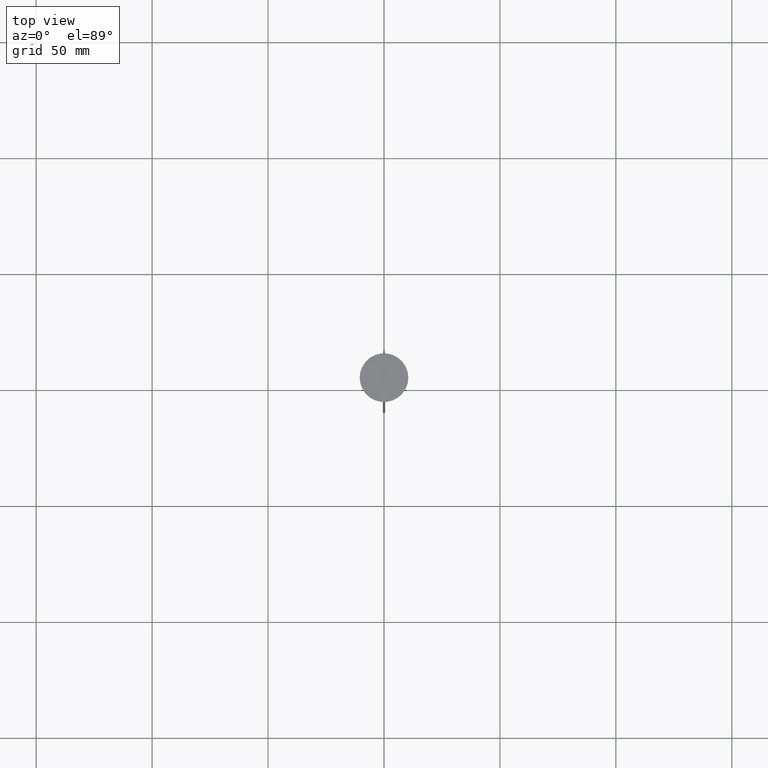
[diagram: clean part render]
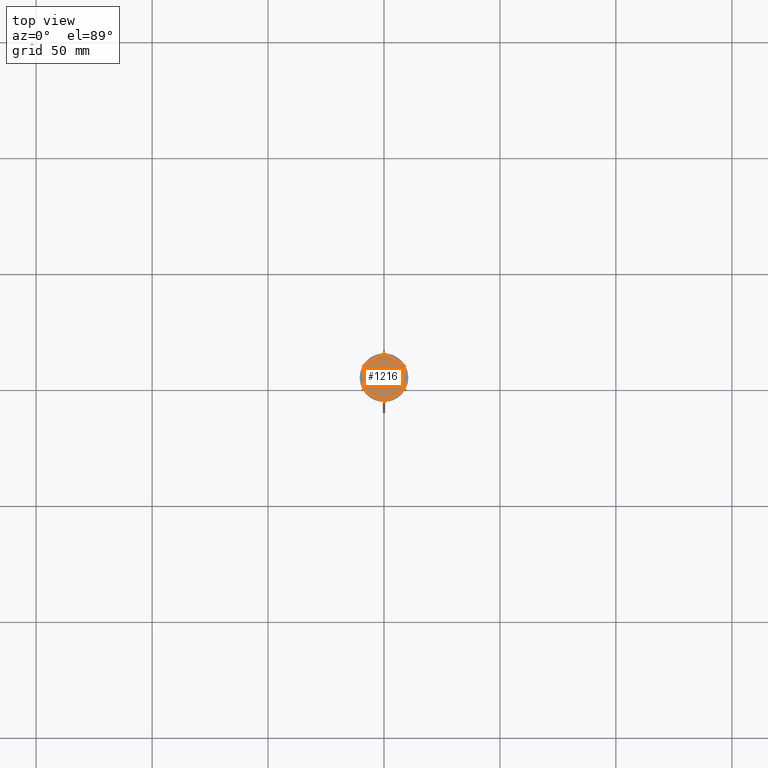
[diagram: same view with one face highlighted and labeled with its STEP entity id]
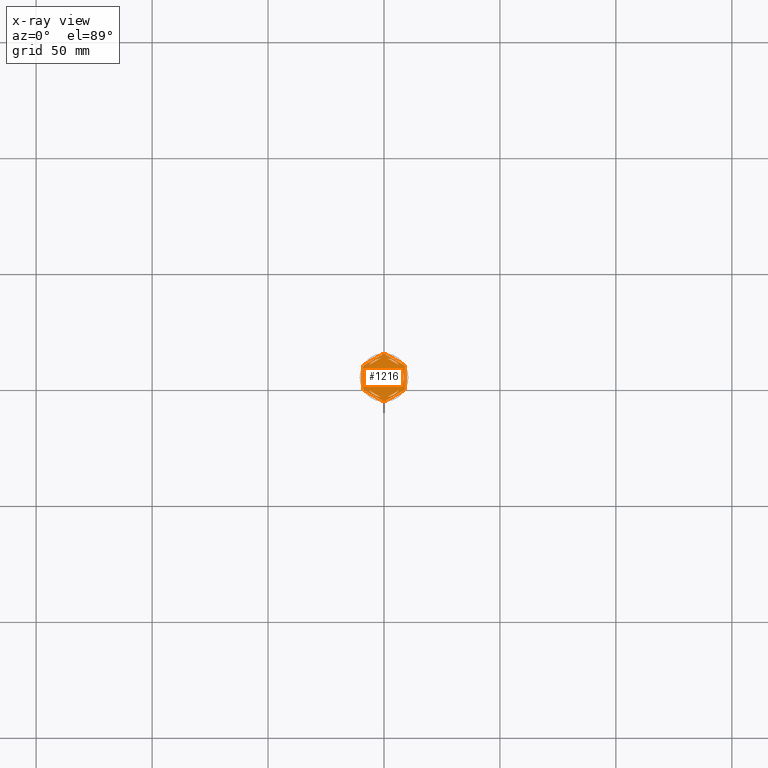
[diagram: x-ray of the same camera — body ghosted, the highlighted face saturated]
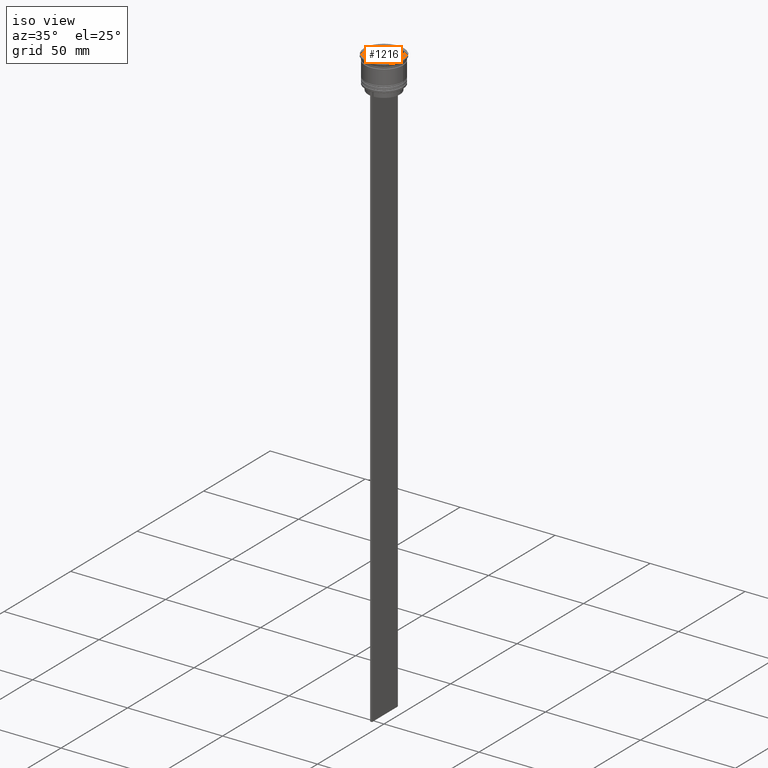
[diagram: same view with one face highlighted and labeled with its STEP entity id]
A machine part, top view. The second image highlights one B-rep face of the part: STEP entity #1216.
The next image is the same camera in x-ray: the body ghosted, the highlighted face saturated — about 0% of this face is hidden behind the body in this view.
A second angle (iso view) of the same face is appended — the face is thin or edge-on in the first view.
In plain terms, the highlighted planar face has unit normal (0, 0, 1).
Its self-contained STEP definition (entity closure, byte-faithful):
#4 = CARTESIAN_POINT ( 'NONE',  ( 0.000000000000000000, 10.39230484541326582, -1.000000000000000000 ) ) ;
#14 = DIRECTION ( 'NONE',  ( 1.000000000000000000, 0.000000000000000000, 0.000000000000000000 ) ) ;
#17 = FACE_BOUND ( 'NONE', #1820, .T. ) ;
#18 = CARTESIAN_POINT ( 'NONE',  ( 6.487468592766552078, 5.492062568641001619, -1.000000000000000888 ) ) ;
#22 = VERTEX_POINT ( 'NONE', #2283 ) ;
#46 = VERTEX_POINT ( 'NONE', #18 ) ;
#48 = AXIS2_PLACEMENT_3D ( 'NONE', #2085, #2073, #2449 ) ;
#67 = CARTESIAN_POINT ( 'NONE',  ( 0.000000000000000000, 0.000000000000000000, -1.000000000000000000 ) ) ;
#77 = DIRECTION ( 'NONE',  ( 0.000000000000000000, 0.000000000000000000, 1.000000000000000000 ) ) ;
#92 = DIRECTION ( 'NONE',  ( 0.000000000000000000, 0.000000000000000000, 1.000000000000000000 ) ) ;
#122 = LINE ( 'NONE', #2150, #1191 ) ;
#135 = EDGE_CURVE ( 'NONE', #2239, #2379, #2179, .T. ) ;
#148 = VECTOR ( 'NONE', #993, 1000.000000000000114 ) ;
#150 = VERTEX_POINT ( 'NONE', #1557 ) ;
#169 = DIRECTION ( 'NONE',  ( 1.000000000000000000, 0.000000000000000000, 0.000000000000000000 ) ) ;
#172 = EDGE_CURVE ( 'NONE', #1592, #2256, #1237, .T. ) ;
#198 = EDGE_CURVE ( 'NONE', #446, #1393, #1188, .T. ) ;
#211 = AXIS2_PLACEMENT_3D ( 'NONE', #880, #291, #1476 ) ;
#212 = EDGE_LOOP ( 'NONE', ( #2567, #672 ) ) ;
#232 = CARTESIAN_POINT ( 'NONE',  ( -9.000000000000001776, 5.196152422706632024, -1.000000000000000000 ) ) ;
#242 = DIRECTION ( 'NONE',  ( 0.000000000000000000, 1.000000000000000000, 0.000000000000000000 ) ) ;
#267 = LINE ( 'NONE', #2423, #1584 ) ;
#274 = CARTESIAN_POINT ( 'NONE',  ( 0.000000000000000000, 0.000000000000000000, -1.000000000000000000 ) ) ;
#291 = DIRECTION ( 'NONE',  ( 0.000000000000000000, 0.000000000000000000, 1.000000000000000000 ) ) ;
#312 = EDGE_CURVE ( 'NONE', #1185, #1903, #2224, .T. ) ;
#318 = VECTOR ( 'NONE', #1171, 1000.000000000000000 ) ;
#320 = ORIENTED_EDGE ( 'NONE', *, *, #1796, .F. ) ;
#323 = VECTOR ( 'NONE', #1627, 1000.000000000000000 ) ;
#332 = EDGE_CURVE ( 'NONE', #150, #346, #2086, .T. ) ;
#333 = CIRCLE ( 'NONE', #48, 8.500000000000000000 ) ;
#339 = ORIENTED_EDGE ( 'NONE', *, *, #1389, .T. ) ;
#346 = VERTEX_POINT ( 'NONE', #1705 ) ;
#352 = DIRECTION ( 'NONE',  ( 0.8660254037844385966, 0.5000000000000001110, 0.000000000000000000 ) ) ;
#366 = CARTESIAN_POINT ( 'NONE',  ( -1.512531407233448366, -8.364343891910017703, -1.000000000000000888 ) ) ;
#384 = CARTESIAN_POINT ( 'NONE',  ( 0.000000000000000000, 0.000000000000000000, -1.000000000000000000 ) ) ;
#409 = VERTEX_POINT ( 'NONE', #1661 ) ;
#412 = DIRECTION ( 'NONE',  ( 1.000000000000000000, 0.000000000000000000, -0.000000000000000000 ) ) ;
#424 = CIRCLE ( 'NONE', #1925, 10.19999999999999574 ) ;
#431 = CARTESIAN_POINT ( 'NONE',  ( -8.000000000000000000, 4.618802153517004072, -1.000000000000000888 ) ) ;
#440 = DIRECTION ( 'NONE',  ( 0.000000000000000000, 0.000000000000000000, 1.000000000000000000 ) ) ;
#446 = VERTEX_POINT ( 'NONE', #1477 ) ;
#459 = CARTESIAN_POINT ( 'NONE',  ( -8.000000000000000000, 2.872281323269016085, -1.000000000000000888 ) ) ;
#462 = VECTOR ( 'NONE', #242, 1000.000000000000000 ) ;
#470 = ORIENTED_EDGE ( 'NONE', *, *, #884, .F. ) ;
#497 = ORIENTED_EDGE ( 'NONE', *, *, #1807, .F. ) ;
#501 = EDGE_CURVE ( 'NONE', #2239, #2064, #1869, .T. ) ;
#511 = CARTESIAN_POINT ( 'NONE',  ( 8.656921938165297092, 5.394228634059953897, -1.000000000000000000 ) ) ;
#563 = ORIENTED_EDGE ( 'NONE', *, *, #172, .F. ) ;
#564 = CARTESIAN_POINT ( 'NONE',  ( 8.673617379884035472E-16, 9.237604307034013473, -1.000000000000000888 ) ) ;
#567 = EDGE_CURVE ( 'NONE', #1592, #1089, #122, .T. ) ;
#610 = VERTEX_POINT ( 'NONE', #1716 ) ;
#613 = ORIENTED_EDGE ( 'NONE', *, *, #1695, .F. ) ;
#620 = ORIENTED_EDGE ( 'NONE', *, *, #135, .T. ) ;
#627 = AXIS2_PLACEMENT_3D ( 'NONE', #2244, #1277, #2088 ) ;
#656 = ORIENTED_EDGE ( 'NONE', *, *, #1434, .F. ) ;
#672 = ORIENTED_EDGE ( 'NONE', *, *, #1721, .F. ) ;
#690 = ORIENTED_EDGE ( 'NONE', *, *, #1474, .T. ) ;
#706 = EDGE_LOOP ( 'NONE', ( #886, #1276 ) ) ;
#728 = CARTESIAN_POINT ( 'NONE',  ( 1.512531407233452363, -8.364343891910017703, -1.000000000000000888 ) ) ;
#737 = AXIS2_PLACEMENT_3D ( 'NONE', #1678, #2478, #883 ) ;
#739 = CARTESIAN_POINT ( 'NONE',  ( 9.000000000000001776, 5.196152422706632912, -1.000000000000000000 ) ) ;
#740 = CARTESIAN_POINT ( 'NONE',  ( -6.487468592766553854, 5.492062568640999842, -1.000000000000000888 ) ) ;
#757 = LINE ( 'NONE', #564, #148 ) ;
#759 = DIRECTION ( 'NONE',  ( -0.8660254037844385966, -0.5000000000000001110, 0.000000000000000000 ) ) ;
#764 = DIRECTION ( 'NONE',  ( -0.8660254037844385966, 0.4999999999999999445, 0.000000000000000000 ) ) ;
#776 = AXIS2_PLACEMENT_3D ( 'NONE', #1650, #2416, #2056 ) ;
#782 = CARTESIAN_POINT ( 'NONE',  ( 6.487468592766547637, -5.492062568641006060, -1.000000000000000888 ) ) ;
#815 = FACE_BOUND ( 'NONE', #1010, .T. ) ;
#858 = ORIENTED_EDGE ( 'NONE', *, *, #332, .F. ) ;
#870 = EDGE_CURVE ( 'NONE', #610, #2379, #874, .T. ) ;
#873 = DIRECTION ( 'NONE',  ( 1.000000000000000000, 0.000000000000000000, 0.000000000000000000 ) ) ;
#874 = CIRCLE ( 'NONE', #627, 10.19999999999999574 ) ;
#876 = AXIS2_PLACEMENT_3D ( 'NONE', #1130, #1314, #1515 ) ;
#878 = VECTOR ( 'NONE', #1778, 1000.000000000000114 ) ;
#880 = CARTESIAN_POINT ( 'NONE',  ( 0.000000000000000000, 0.000000000000000000, -1.000000000000000000 ) ) ;
#883 = DIRECTION ( 'NONE',  ( 1.000000000000000000, 0.000000000000000000, 0.000000000000000000 ) ) ;
#884 = EDGE_CURVE ( 'NONE', #1016, #1361, #1411, .T. ) ;
#886 = ORIENTED_EDGE ( 'NONE', *, *, #2407, .F. ) ;
#889 = ORIENTED_EDGE ( 'NONE', *, *, #2063, .F. ) ;
#901 = VERTEX_POINT ( 'NONE', #1871 ) ;
#907 = VERTEX_POINT ( 'NONE', #1084 ) ;
#930 = DIRECTION ( 'NONE',  ( 0.8660254037844385966, -0.4999999999999999445, 0.000000000000000000 ) ) ;
#932 = DIRECTION ( 'NONE',  ( 1.000000000000000000, 8.881784197001252323E-16, 0.000000000000000000 ) ) ;
#965 = VERTEX_POINT ( 'NONE', #740 ) ;
#987 = AXIS2_PLACEMENT_3D ( 'NONE', #384, #1600, #1397 ) ;
#993 = DIRECTION ( 'NONE',  ( 0.8660254037844384856, 0.5000000000000003331, -0.000000000000000000 ) ) ;
#1010 = EDGE_LOOP ( 'NONE', ( #470, #2576 ) ) ;
#1016 = VERTEX_POINT ( 'NONE', #728 ) ;
#1036 = FACE_BOUND ( 'NONE', #706, .T. ) ;
#1058 = ORIENTED_EDGE ( 'NONE', *, *, #2249, .F. ) ;
#1069 = VERTEX_POINT ( 'NONE', #2371 ) ;
#1084 = CARTESIAN_POINT ( 'NONE',  ( 8.000000000000000000, -2.872281323269017417, -1.000000000000000888 ) ) ;
#1085 = VECTOR ( 'NONE', #1537, 1000.000000000000227 ) ;
#1089 = VERTEX_POINT ( 'NONE', #2186 ) ;
#1117 = CARTESIAN_POINT ( 'NONE',  ( -0.3430780618347024080, -10.19422863405994306, -1.000000000000000000 ) ) ;
#1128 = DIRECTION ( 'NONE',  ( -1.877893248421449036E-16, -1.000000000000000000, 0.000000000000000000 ) ) ;
#1130 = CARTESIAN_POINT ( 'NONE',  ( 0.000000000000000000, 0.000000000000000000, -1.000000000000000000 ) ) ;
#1140 = CARTESIAN_POINT ( 'NONE',  ( -8.000000000000000000, -4.618802153517006737, -1.000000000000000888 ) ) ;
#1153 = CARTESIAN_POINT ( 'NONE',  ( 0.000000000000000000, 0.000000000000000000, -1.000000000000000000 ) ) ;
#1166 = ORIENTED_EDGE ( 'NONE', *, *, #567, .T. ) ;
#1171 = DIRECTION ( 'NONE',  ( 0.000000000000000000, -1.000000000000000000, 0.000000000000000000 ) ) ;
#1185 = VERTEX_POINT ( 'NONE', #2581 ) ;
#1188 = CIRCLE ( 'NONE', #776, 8.500000000000000000 ) ;
#1191 = VECTOR ( 'NONE', #352, 1000.000000000000000 ) ;
#1194 = LINE ( 'NONE', #232, #318 ) ;
#1216 = ADVANCED_FACE ( 'NONE', ( #17, #2364, #815, #1346, #1413, #1036, #1560 ), #2236, .T. ) ;
#1217 = CARTESIAN_POINT ( 'NONE',  ( 0.000000000000000000, 0.000000000000000000, -1.000000000000000000 ) ) ;
#1231 = AXIS2_PLACEMENT_3D ( 'NONE', #1217, #440, #412 ) ;
#1237 = CIRCLE ( 'NONE', #987, 10.19999999999999574 ) ;
#1276 = ORIENTED_EDGE ( 'NONE', *, *, #1356, .F. ) ;
#1277 = DIRECTION ( 'NONE',  ( -0.000000000000000000, -0.000000000000000000, -1.000000000000000000 ) ) ;
#1314 = DIRECTION ( 'NONE',  ( -0.000000000000000000, -0.000000000000000000, -1.000000000000000000 ) ) ;
#1346 = FACE_BOUND ( 'NONE', #2045, .T. ) ;
#1352 = LINE ( 'NONE', #2023, #878 ) ;
#1356 = EDGE_CURVE ( 'NONE', #965, #1069, #757, .T. ) ;
#1361 = VERTEX_POINT ( 'NONE', #782 ) ;
#1389 = EDGE_CURVE ( 'NONE', #610, #346, #1194, .T. ) ;
#1393 = VERTEX_POINT ( 'NONE', #366 ) ;
#1397 = DIRECTION ( 'NONE',  ( 1.000000000000000000, 0.000000000000000000, 0.000000000000000000 ) ) ;
#1400 = ORIENTED_EDGE ( 'NONE', *, *, #1989, .F. ) ;
#1411 = CIRCLE ( 'NONE', #211, 8.500000000000000000 ) ;
#1413 = FACE_BOUND ( 'NONE', #1880, .T. ) ;
#1434 = EDGE_CURVE ( 'NONE', #1903, #901, #2219, .T. ) ;
#1435 = EDGE_CURVE ( 'NONE', #150, #2256, #1352, .T. ) ;
#1457 = CIRCLE ( 'NONE', #876, 10.19999999999999574 ) ;
#1470 = CARTESIAN_POINT ( 'NONE',  ( 9.000000000000001776, 4.799999999999988276, -1.000000000000000000 ) ) ;
#1474 = EDGE_CURVE ( 'NONE', #2036, #2142, #2474, .T. ) ;
#1476 = DIRECTION ( 'NONE',  ( 1.000000000000000000, 0.000000000000000000, 0.000000000000000000 ) ) ;
#1477 = CARTESIAN_POINT ( 'NONE',  ( -6.487468592766552078, -5.492062568641001619, -1.000000000000000888 ) ) ;
#1497 = DIRECTION ( 'NONE',  ( 1.000000000000000000, 0.000000000000000000, 0.000000000000000000 ) ) ;
#1504 = EDGE_CURVE ( 'NONE', #1361, #1016, #267, .T. ) ;
#1510 = CARTESIAN_POINT ( 'NONE',  ( 8.000000000000000000, 4.618802153517006737, -1.000000000000000888 ) ) ;
#1515 = DIRECTION ( 'NONE',  ( 1.000000000000000000, 0.000000000000000000, 0.000000000000000000 ) ) ;
#1521 = EDGE_CURVE ( 'NONE', #907, #409, #333, .T. ) ;
#1537 = DIRECTION ( 'NONE',  ( -0.8660254037844385966, 0.5000000000000000000, 0.000000000000000000 ) ) ;
#1557 = CARTESIAN_POINT ( 'NONE',  ( -8.656921938165295316, -5.394228634059957450, -1.000000000000000000 ) ) ;
#1560 = FACE_OUTER_BOUND ( 'NONE', #2419, .T. ) ;
#1584 = VECTOR ( 'NONE', #1646, 1000.000000000000114 ) ;
#1592 = VERTEX_POINT ( 'NONE', #2437 ) ;
#1600 = DIRECTION ( 'NONE',  ( -0.000000000000000000, -0.000000000000000000, -1.000000000000000000 ) ) ;
#1627 = DIRECTION ( 'NONE',  ( 0.000000000000000000, 1.000000000000000000, 0.000000000000000000 ) ) ;
#1646 = DIRECTION ( 'NONE',  ( -0.8660254037844387076, -0.4999999999999998335, 0.000000000000000000 ) ) ;
#1650 = CARTESIAN_POINT ( 'NONE',  ( 0.000000000000000000, 0.000000000000000000, -1.000000000000000000 ) ) ;
#1661 = CARTESIAN_POINT ( 'NONE',  ( 8.000000000000000000, 2.872281323269014752, -1.000000000000000888 ) ) ;
#1670 = AXIS2_PLACEMENT_3D ( 'NONE', #274, #77, #873 ) ;
#1678 = CARTESIAN_POINT ( 'NONE',  ( 0.000000000000000000, 0.000000000000000000, -1.000000000000000000 ) ) ;
#1695 = EDGE_CURVE ( 'NONE', #2036, #1089, #424, .T. ) ;
#1702 = AXIS2_PLACEMENT_3D ( 'NONE', #2124, #2308, #1939 ) ;
#1705 = CARTESIAN_POINT ( 'NONE',  ( -9.000000000000001776, -4.799999999999988276, -1.000000000000000000 ) ) ;
#1716 = CARTESIAN_POINT ( 'NONE',  ( -9.000000000000001776, 4.799999999999988276, -1.000000000000000000 ) ) ;
#1721 = EDGE_CURVE ( 'NONE', #409, #907, #2522, .T. ) ;
#1724 = EDGE_CURVE ( 'NONE', #2412, #2064, #2532, .T. ) ;
#1754 = CARTESIAN_POINT ( 'NONE',  ( 0.000000000000000000, 0.000000000000000000, -1.000000000000000000 ) ) ;
#1756 = CIRCLE ( 'NONE', #1670, 8.500000000000000000 ) ;
#1778 = DIRECTION ( 'NONE',  ( 0.8660254037844387076, -0.4999999999999997224, 0.000000000000000000 ) ) ;
#1796 = EDGE_CURVE ( 'NONE', #901, #1185, #2096, .T. ) ;
#1806 = DIRECTION ( 'NONE',  ( 0.000000000000000000, 0.000000000000000000, 1.000000000000000000 ) ) ;
#1807 = EDGE_CURVE ( 'NONE', #1393, #446, #2545, .T. ) ;
#1820 = EDGE_LOOP ( 'NONE', ( #1400, #889 ) ) ;
#1856 = CARTESIAN_POINT ( 'NONE',  ( 9.000000000000001776, -5.196152422706632024, -1.000000000000000000 ) ) ;
#1869 = CIRCLE ( 'NONE', #1702, 10.19999999999999574 ) ;
#1871 = CARTESIAN_POINT ( 'NONE',  ( -8.500000000000000000, 0.000000000000000000, -1.000000000000000000 ) ) ;
#1880 = EDGE_LOOP ( 'NONE', ( #656, #2334, #320 ) ) ;
#1885 = DIRECTION ( 'NONE',  ( -0.000000000000000000, -0.000000000000000000, -1.000000000000000000 ) ) ;
#1903 = VERTEX_POINT ( 'NONE', #459 ) ;
#1925 = AXIS2_PLACEMENT_3D ( 'NONE', #2484, #1885, #932 ) ;
#1939 = DIRECTION ( 'NONE',  ( 1.000000000000000000, 1.598721155460225418E-14, 0.000000000000000000 ) ) ;
#1989 = EDGE_CURVE ( 'NONE', #46, #22, #1756, .T. ) ;
#2019 = ORIENTED_EDGE ( 'NONE', *, *, #198, .F. ) ;
#2023 = CARTESIAN_POINT ( 'NONE',  ( -9.000000000000001776, -5.196152422706632912, -1.000000000000000000 ) ) ;
#2024 = ORIENTED_EDGE ( 'NONE', *, *, #870, .F. ) ;
#2036 = VERTEX_POINT ( 'NONE', #2106 ) ;
#2045 = EDGE_LOOP ( 'NONE', ( #2019, #497 ) ) ;
#2056 = DIRECTION ( 'NONE',  ( 1.000000000000000000, 0.000000000000000000, 0.000000000000000000 ) ) ;
#2063 = EDGE_CURVE ( 'NONE', #22, #46, #2508, .T. ) ;
#2064 = VERTEX_POINT ( 'NONE', #2519 ) ;
#2073 = DIRECTION ( 'NONE',  ( 0.000000000000000000, 0.000000000000000000, 1.000000000000000000 ) ) ;
#2085 = CARTESIAN_POINT ( 'NONE',  ( 0.000000000000000000, 0.000000000000000000, -1.000000000000000000 ) ) ;
#2086 = CIRCLE ( 'NONE', #737, 10.19999999999999574 ) ;
#2088 = DIRECTION ( 'NONE',  ( 1.000000000000000000, 0.000000000000000000, 0.000000000000000000 ) ) ;
#2096 = CIRCLE ( 'NONE', #2261, 8.500000000000000000 ) ;
#2106 = CARTESIAN_POINT ( 'NONE',  ( 9.000000000000001776, -4.799999999999988276, -1.000000000000000000 ) ) ;
#2117 = CARTESIAN_POINT ( 'NONE',  ( -8.656921938165297092, 5.394228634059953009, -1.000000000000000000 ) ) ;
#2121 = VECTOR ( 'NONE', #759, 1000.000000000000000 ) ;
#2124 = CARTESIAN_POINT ( 'NONE',  ( 0.000000000000000000, 0.000000000000000000, -1.000000000000000000 ) ) ;
#2133 = AXIS2_PLACEMENT_3D ( 'NONE', #1754, #1806, #14 ) ;
#2142 = VERTEX_POINT ( 'NONE', #1470 ) ;
#2150 = CARTESIAN_POINT ( 'NONE',  ( 2.607697573705103160E-15, -10.39230484541326405, -1.000000000000000000 ) ) ;
#2158 = DIRECTION ( 'NONE',  ( 0.000000000000000000, 0.000000000000000000, 1.000000000000000000 ) ) ;
#2179 = LINE ( 'NONE', #4, #2121 ) ;
#2186 = CARTESIAN_POINT ( 'NONE',  ( 8.656921938165297092, -5.394228634059953009, -1.000000000000000000 ) ) ;
#2216 = CIRCLE ( 'NONE', #2540, 8.500000000000000000 ) ;
#2219 = CIRCLE ( 'NONE', #2133, 8.500000000000000000 ) ;
#2224 = LINE ( 'NONE', #431, #323 ) ;
#2236 = PLANE ( 'NONE',  #1231 ) ;
#2239 = VERTEX_POINT ( 'NONE', #2513 ) ;
#2244 = CARTESIAN_POINT ( 'NONE',  ( 0.000000000000000000, 0.000000000000000000, -1.000000000000000000 ) ) ;
#2249 = EDGE_CURVE ( 'NONE', #2412, #2142, #1457, .T. ) ;
#2256 = VERTEX_POINT ( 'NONE', #1117 ) ;
#2261 = AXIS2_PLACEMENT_3D ( 'NONE', #1153, #2158, #169 ) ;
#2283 = CARTESIAN_POINT ( 'NONE',  ( 1.512531407233448366, 8.364343891910017703, -1.000000000000000888 ) ) ;
#2308 = DIRECTION ( 'NONE',  ( -0.000000000000000000, -0.000000000000000000, -1.000000000000000000 ) ) ;
#2334 = ORIENTED_EDGE ( 'NONE', *, *, #312, .F. ) ;
#2353 = ORIENTED_EDGE ( 'NONE', *, *, #1435, .T. ) ;
#2364 = FACE_BOUND ( 'NONE', #212, .T. ) ;
#2371 = CARTESIAN_POINT ( 'NONE',  ( -1.512531407233451475, 8.364343891910017703, -1.000000000000000888 ) ) ;
#2379 = VERTEX_POINT ( 'NONE', #2117 ) ;
#2388 = VECTOR ( 'NONE', #930, 1000.000000000000114 ) ;
#2407 = EDGE_CURVE ( 'NONE', #1069, #965, #2216, .T. ) ;
#2412 = VERTEX_POINT ( 'NONE', #511 ) ;
#2416 = DIRECTION ( 'NONE',  ( 0.000000000000000000, 0.000000000000000000, 1.000000000000000000 ) ) ;
#2419 = EDGE_LOOP ( 'NONE', ( #690, #1058, #2486, #2538, #620, #2024, #339, #858, #2353, #563, #1166, #613 ) ) ;
#2423 = CARTESIAN_POINT ( 'NONE',  ( -8.673617379884035472E-16, -9.237604307034013473, -1.000000000000000888 ) ) ;
#2437 = CARTESIAN_POINT ( 'NONE',  ( 0.3430780618347059052, -10.19422863405994306, -1.000000000000000000 ) ) ;
#2449 = DIRECTION ( 'NONE',  ( 1.000000000000000000, 0.000000000000000000, 0.000000000000000000 ) ) ;
#2468 = VECTOR ( 'NONE', #1128, 1000.000000000000000 ) ;
#2474 = LINE ( 'NONE', #1856, #462 ) ;
#2478 = DIRECTION ( 'NONE',  ( -0.000000000000000000, -0.000000000000000000, -1.000000000000000000 ) ) ;
#2484 = CARTESIAN_POINT ( 'NONE',  ( 0.000000000000000000, 0.000000000000000000, -1.000000000000000000 ) ) ;
#2486 = ORIENTED_EDGE ( 'NONE', *, *, #1724, .T. ) ;
#2497 = CARTESIAN_POINT ( 'NONE',  ( 7.999999999999998224, -4.618802153517008513, -1.000000000000000888 ) ) ;
#2508 = LINE ( 'NONE', #1510, #2388 ) ;
#2513 = CARTESIAN_POINT ( 'NONE',  ( -0.3430780618347059052, 10.19422863405994306, -1.000000000000000000 ) ) ;
#2519 = CARTESIAN_POINT ( 'NONE',  ( 0.3430780618347050170, 10.19422863405994306, -1.000000000000000000 ) ) ;
#2522 = LINE ( 'NONE', #2497, #2468 ) ;
#2532 = LINE ( 'NONE', #739, #1085 ) ;
#2538 = ORIENTED_EDGE ( 'NONE', *, *, #501, .F. ) ;
#2540 = AXIS2_PLACEMENT_3D ( 'NONE', #67, #92, #1497 ) ;
#2545 = LINE ( 'NONE', #1140, #2584 ) ;
#2567 = ORIENTED_EDGE ( 'NONE', *, *, #1521, .F. ) ;
#2576 = ORIENTED_EDGE ( 'NONE', *, *, #1504, .F. ) ;
#2581 = CARTESIAN_POINT ( 'NONE',  ( -8.000000000000000000, -2.872281323269016085, -1.000000000000000888 ) ) ;
#2584 = VECTOR ( 'NONE', #764, 1000.000000000000114 ) ;